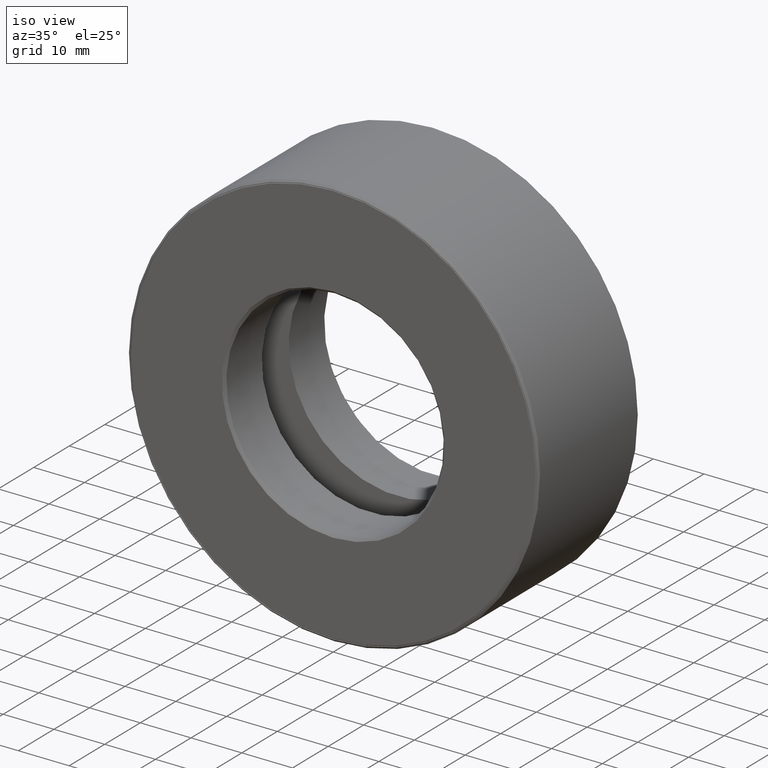
[diagram: clean part render]
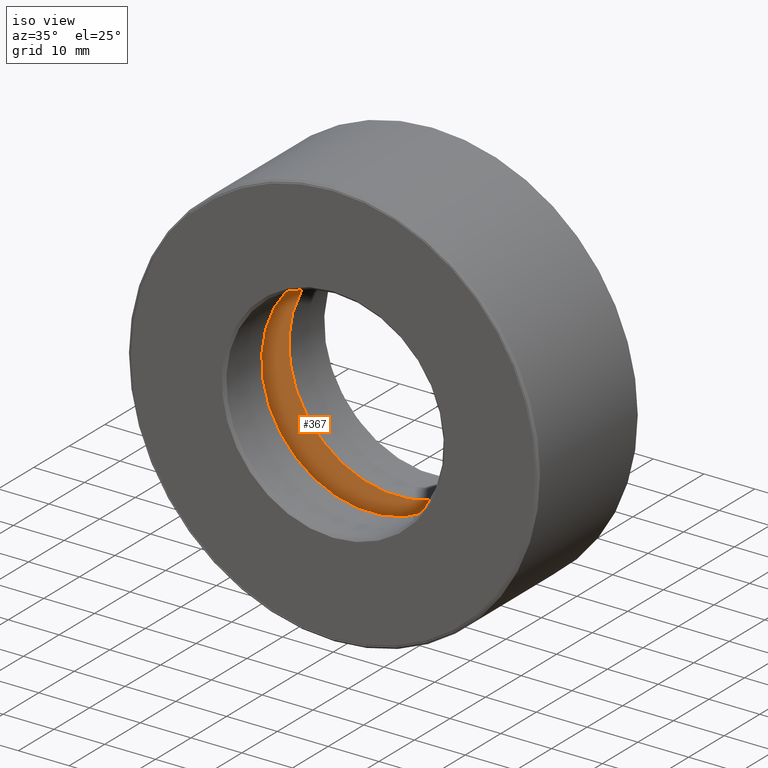
[diagram: same view with one face highlighted and labeled with its STEP entity id]
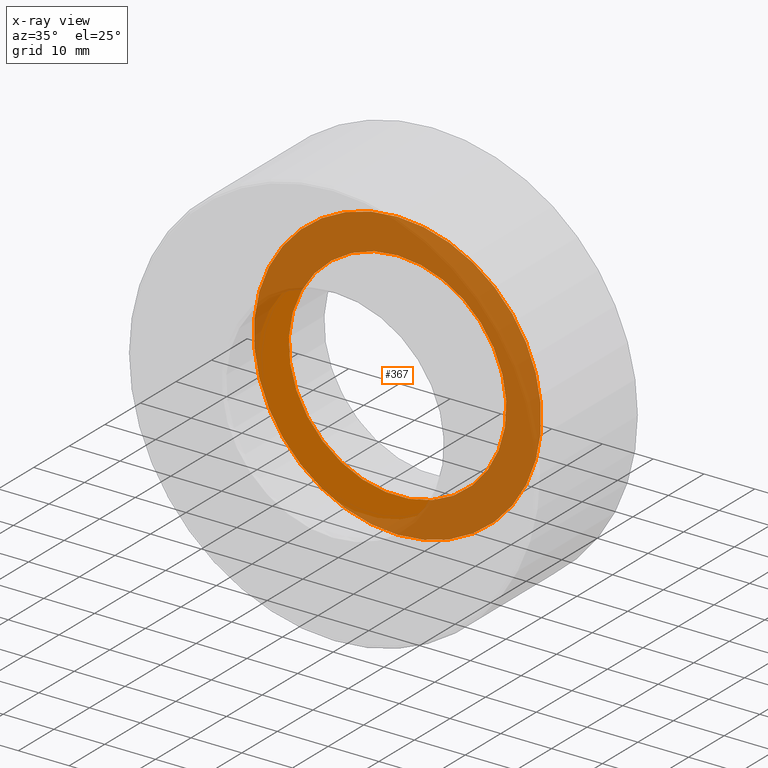
[diagram: x-ray of the same camera — body ghosted, the highlighted face saturated]
A machine part, iso view. The second image highlights one B-rep face of the part: STEP entity #367.
The next image is the same camera in x-ray: the body ghosted, the highlighted face saturated — about 71% of this face is hidden behind the body in this view.
In plain terms, the highlighted planar face has unit normal (0, -1, 0).
Its self-contained STEP definition (entity closure, byte-faithful):
#9 = EDGE_LOOP ( 'NONE', ( #263 ) ) ;
#23 = DIRECTION ( 'NONE',  ( -0.0000000000000000000, 1.000000000000000000, -0.0000000000000000000 ) ) ;
#24 = EDGE_CURVE ( 'NONE', #386, #386, #399, .T. ) ;
#44 = FACE_OUTER_BOUND ( 'NONE', #9, .T. ) ;
#99 = CARTESIAN_POINT ( 'NONE',  ( 0.0000000000000000000, 0.7125000000000000200, 0.0000000000000000000 ) ) ;
#145 = CARTESIAN_POINT ( 'NONE',  ( 0.0000000000000000000, 0.7124999999999998000, 1.114749999999999700 ) ) ;
#157 = DIRECTION ( 'NONE',  ( 0.0000000000000000000, 0.0000000000000000000, 1.000000000000000000 ) ) ;
#214 = DIRECTION ( 'NONE',  ( 0.0000000000000000000, -1.000000000000000000, 0.0000000000000000000 ) ) ;
#217 = FACE_BOUND ( 'NONE', #302, .T. ) ;
#225 = CIRCLE ( 'NONE', #499, 0.8437500000000000000 ) ;
#228 = DIRECTION ( 'NONE',  ( -0.0000000000000000000, 1.000000000000000000, -0.0000000000000000000 ) ) ;
#249 = CARTESIAN_POINT ( 'NONE',  ( 0.0000000000000000000, 0.7125000000000000200, 0.8437500000000000000 ) ) ;
#263 = ORIENTED_EDGE ( 'NONE', *, *, #24, .F. ) ;
#270 = VERTEX_POINT ( 'NONE', #249 ) ;
#302 = EDGE_LOOP ( 'NONE', ( #392 ) ) ;
#327 = AXIS2_PLACEMENT_3D ( 'NONE', #567, #23, #157 ) ;
#332 = DIRECTION ( 'NONE',  ( 0.0000000000000000000, 0.0000000000000000000, 1.000000000000000000 ) ) ;
#367 = ADVANCED_FACE ( 'NONE', ( #217, #44 ), #593, .T. ) ;
#369 = DIRECTION ( 'NONE',  ( 0.0000000000000000000, -0.0000000000000000000, -1.000000000000000000 ) ) ;
#386 = VERTEX_POINT ( 'NONE', #145 ) ;
#392 = ORIENTED_EDGE ( 'NONE', *, *, #476, .T. ) ;
#399 = CIRCLE ( 'NONE', #327, 1.114749999999999700 ) ;
#424 = AXIS2_PLACEMENT_3D ( 'NONE', #456, #214, #369 ) ;
#456 = CARTESIAN_POINT ( 'NONE',  ( -3.591220840379688200E-016, 0.7124999999999998000, 0.0000000000000000000 ) ) ;
#476 = EDGE_CURVE ( 'NONE', #270, #270, #225, .T. ) ;
#499 = AXIS2_PLACEMENT_3D ( 'NONE', #99, #228, #332 ) ;
#567 = CARTESIAN_POINT ( 'NONE',  ( 0.0000000000000000000, 0.7124999999999998000, 0.0000000000000000000 ) ) ;
#593 = PLANE ( 'NONE',  #424 ) ;